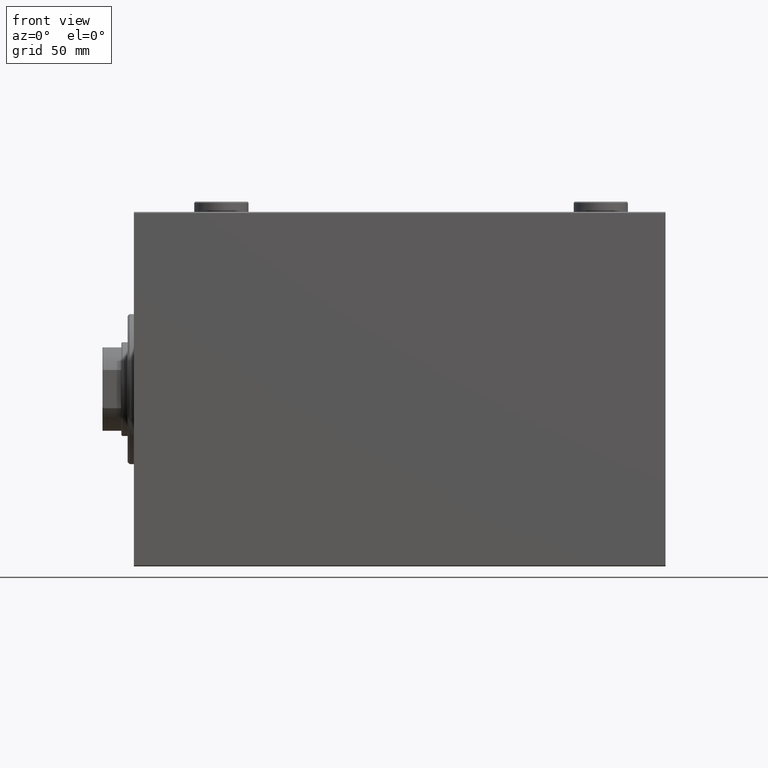
[diagram: clean part render]
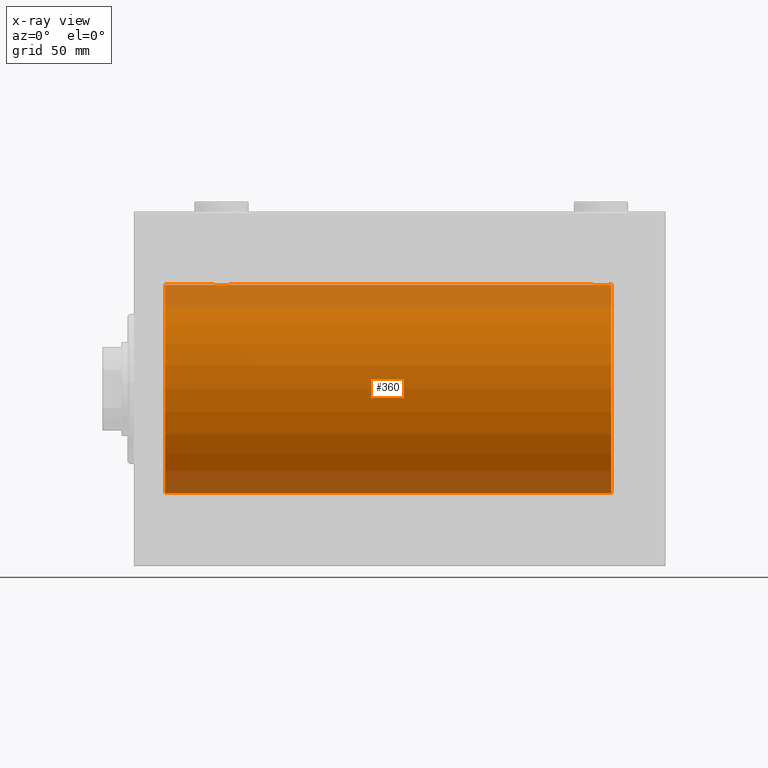
[diagram: x-ray — body ghosted, one internal face saturated and labeled with its STEP entity id]
A machine part, front view, then the same camera in x-ray: the body is ghosted and one INTERNAL B-rep face — a face not visible from any outside direction — is saturated and labeled: STEP entity #360.
In plain terms, the highlighted cylindrical surface (partial cylindrical patch) has radius 50 mm, axis along (-1, -0, -0).
Its self-contained STEP definition (entity closure, byte-faithful):
#24 = FACE_OUTER_BOUND ( 'NONE', #28652, .T. ) ;
#217 = CARTESIAN_POINT ( 'NONE',  ( 219.7500000000000284, -1.485882679034568268E-14, -50.00000000000000000 ) ) ;
#360 = ADVANCED_FACE ( 'NONE', ( #24 ), #45191, .F. ) ;
#494 = ORIENTED_EDGE ( 'NONE', *, *, #23923, .T. ) ;
#687 = DIRECTION ( 'NONE',  ( -1.000000000000000000, -0.000000000000000000, -0.000000000000000000 ) ) ;
#746 = CARTESIAN_POINT ( 'NONE',  ( 46.25000000000000000, 6.123233970928975205E-15, -50.00000000000000000 ) ) ;
#1143 = CARTESIAN_POINT ( 'NONE',  ( 220.7969643804801194, -2.807099414226295941, 49.92152599098506727 ) ) ;
#1299 = EDGE_CURVE ( 'NONE', #27711, #41059, #3142, .T. ) ;
#2279 = CARTESIAN_POINT ( 'NONE',  ( 226.8069783183931349, -3.203153387937324403, 49.89767833571684008 ) ) ;
#2282 = VERTEX_POINT ( 'NONE', #42905 ) ;
#2573 = LINE ( 'NONE', #30534, #35261 ) ;
#2906 = CARTESIAN_POINT ( 'NONE',  ( 43.09737617879036975, -4.115209769591108291, 49.83039196709102470 ) ) ;
#3060 = EDGE_CURVE ( 'NONE', #8789, #40538, #5086, .T. ) ;
#3142 = CIRCLE ( 'NONE', #42656, 50.00000000000000000 ) ;
#3230 = CARTESIAN_POINT ( 'NONE',  ( 228.2500000000000568, -0.2773743941468490570, -50.00000000000000711 ) ) ;
#3248 = EDGE_CURVE ( 'NONE', #25814, #27711, #16026, .T. ) ;
#3262 = CARTESIAN_POINT ( 'NONE',  ( 229.0000000000000000, 0.000000000000000000, 0.000000000000000000 ) ) ;
#3670 = CARTESIAN_POINT ( 'NONE',  ( 220.3139716787804332, -2.133925816755195992, -49.95498245321557818 ) ) ;
#3771 = VERTEX_POINT ( 'NONE', #17204 ) ;
#4125 = CARTESIAN_POINT ( 'NONE',  ( 223.4459143511985246, -4.222816005855223764, -49.82138837911247009 ) ) ;
#4147 = LINE ( 'NONE', #39888, #27475 ) ;
#4339 = CARTESIAN_POINT ( 'NONE',  ( 221.1930216816069219, -3.203153387937335506, -49.89767833571684008 ) ) ;
#4567 = CARTESIAN_POINT ( 'NONE',  ( 224.2839528702670293, -4.249777379711420444, -49.81906655360197789 ) ) ;
#4880 = CARTESIAN_POINT ( 'NONE',  ( 39.19302168160691480, -3.203153387937309748, -49.89767833571684008 ) ) ;
#5086 = LINE ( 'NONE', #8303, #41258 ) ;
#5103 = CARTESIAN_POINT ( 'NONE',  ( 39.87368355124922203, -3.690299572754709878, -49.86386974736159772 ) ) ;
#5266 = CARTESIAN_POINT ( 'NONE',  ( 220.6211828273627304, -2.593114840406140598, 49.93325460257641879 ) ) ;
#5337 = CARTESIAN_POINT ( 'NONE',  ( 40.63289352445425351, -4.033756670430834745, -49.83713703490974467 ) ) ;
#6177 = CARTESIAN_POINT ( 'NONE',  ( 221.4068727911404721, -3.378657745070624774, 49.88595615988430154 ) ) ;
#6350 = CARTESIAN_POINT ( 'NONE',  ( 45.81839248987871827, -1.886522330773408029, 49.96505190380065642 ) ) ;
#6408 = CARTESIAN_POINT ( 'NONE',  ( 224.5540856488015322, -4.222816005855213106, 49.82138837911247009 ) ) ;
#6666 = CARTESIAN_POINT ( 'NONE',  ( 228.2500000000000284, 6.123233970934497231E-15, -50.00000000000000000 ) ) ;
#6803 = CARTESIAN_POINT ( 'NONE',  ( 45.68602832121950286, -2.133925816755175564, 49.95498245321557818 ) ) ;
#6893 = CARTESIAN_POINT ( 'NONE',  ( 226.5931272088596415, -3.378657745070633656, -49.88595615988430154 ) ) ;
#6955 = VERTEX_POINT ( 'NONE', #27675 ) ;
#6981 = CARTESIAN_POINT ( 'NONE',  ( 45.82100581985226029, -1.881229021238117305, -49.96525240872482954 ) ) ;
#7122 = CARTESIAN_POINT ( 'NONE',  ( 225.8874473939280279, -3.818052230167738870, -49.85412671291929598 ) ) ;
#7739 = VERTEX_POINT ( 'NONE', #35903 ) ;
#8093 = CARTESIAN_POINT ( 'NONE',  ( 40.90262382120963025, -4.115209769591096745, -49.83039196709104601 ) ) ;
#8255 = CARTESIAN_POINT ( 'NONE',  ( 219.9672735790269087, -1.369753890039667299, 49.98188917176553048 ) ) ;
#8303 = CARTESIAN_POINT ( 'NONE',  ( 229.0000000000000000, 6.123233995736764507E-15, -50.00000000000000000 ) ) ;
#8317 = CARTESIAN_POINT ( 'NONE',  ( 38.80078072038718062, -2.811461347331096317, -49.92127983148851911 ) ) ;
#8341 = CARTESIAN_POINT ( 'NONE',  ( 14.99999999999998579, 0.000000000000000000, 0.000000000000000000 ) ) ;
#8776 = CARTESIAN_POINT ( 'NONE',  ( 43.37333436579038448, -4.031616700143170640, -49.83731072121799599 ) ) ;
#8789 = VERTEX_POINT ( 'NONE', #21722 ) ;
#9552 = CARTESIAN_POINT ( 'NONE',  ( 38.62118282736263097, -2.593114840406128163, 49.93325460257639747 ) ) ;
#9648 = CARTESIAN_POINT ( 'NONE',  ( 224.5599786769565469, -4.222042462213138947, -49.82145436824653473 ) ) ;
#9783 = CARTESIAN_POINT ( 'NONE',  ( 43.88217049484444487, -3.820681512513376177, 49.85392475515401145 ) ) ;
#9844 = CARTESIAN_POINT ( 'NONE',  ( 226.1263164487508277, -3.690299572754722313, 49.86386974736159061 ) ) ;
#9950 = CARTESIAN_POINT ( 'NONE',  ( 46.25000000000000000, 5.983909456282587589E-15, 50.00000000000000000 ) ) ;
#10011 = CARTESIAN_POINT ( 'NONE',  ( 44.12631644875079928, -3.690299572754719204, 49.86386974736159772 ) ) ;
#10457 = CARTESIAN_POINT ( 'NONE',  ( 37.75000000000000711, -2.480809774739037926E-23, 50.00000000000000000 ) ) ;
#10642 = CARTESIAN_POINT ( 'NONE',  ( 44.59312720885954917, -3.378657745070612339, -49.88595615988430154 ) ) ;
#10997 = CARTESIAN_POINT ( 'NONE',  ( 222.6328935244542890, -4.033756670430864943, -49.83713703490974467 ) ) ;
#11032 = CARTESIAN_POINT ( 'NONE',  ( 219.7500000000000284, -1.485882679034568268E-14, -50.00000000000000000 ) ) ;
#11227 = CARTESIAN_POINT ( 'NONE',  ( 222.1178295051556688, -3.820681512513397937, -49.85392475515401145 ) ) ;
#11272 = ORIENTED_EDGE ( 'NONE', *, *, #25973, .F. ) ;
#11681 = B_SPLINE_CURVE_WITH_KNOTS ( 'NONE', 3,
 ( #10457, #24212, #27435, #30642, #41417, #17120, #21017, #9552, #30421, #20335, #34086, #34536, #44611, #23531, #13452, #27204, #44389, #41185, #17349, #2906, #41861, #9783, #10011, #38198, #23760, #24438, #37754, #6803, #6350, #31319, #20790, #27658, #40958, #31095 ),
 .UNSPECIFIED., .F., .F.,
 ( 4, 2, 2, 2, 2, 2, 2, 2, 2, 2, 2, 2, 2, 2, 2, 2, 4 ),
 ( 0.01329343152928760124, 0.01412407817529638850, 0.01495472482130517575, 0.01578537146731396126, 0.01661601811332274678, 0.01744666475933153577, 0.01827731140534032128, 0.01910795805134911027, 0.01993860469735789925, 0.02076925134336668477, 0.02159989798937547029, 0.02243054463538425927, 0.02326119128139304479, 0.02409183792740183377, 0.02492248457341061929, 0.02575313121941940481, 0.02658377786542819379 ),
 .UNSPECIFIED. ) ;
#12224 = CARTESIAN_POINT ( 'NONE',  ( 42.28395287026697957, -4.249777379711388470, -49.81906655360197789 ) ) ;
#12444 = CARTESIAN_POINT ( 'NONE',  ( 37.75000000000000711, 4.113764933535406279E-15, -50.00000000000000000 ) ) ;
#12835 = CARTESIAN_POINT ( 'NONE',  ( 222.1125526060720290, -3.818052230167728656, 49.85412671291929598 ) ) ;
#13056 = CARTESIAN_POINT ( 'NONE',  ( 223.4400213230435668, -4.222042462213131842, 49.82145436824653473 ) ) ;
#13452 = CARTESIAN_POINT ( 'NONE',  ( 40.89676703965783844, -4.113647494206482236, 49.83052139214890985 ) ) ;
#13514 = CARTESIAN_POINT ( 'NONE',  ( 228.2500000000000568, -0.2808785465865648034, 50.00000000000001421 ) ) ;
#13775 = CARTESIAN_POINT ( 'NONE',  ( 227.2030356195199658, -2.807099414226281286, -49.92152599098506727 ) ) ;
#13784 = EDGE_CURVE ( 'NONE', #3771, #7739, #17843, .T. ) ;
#14083 = CARTESIAN_POINT ( 'NONE',  ( 45.37881717263737613, -2.593114840406121946, -49.93325460257640458 ) ) ;
#14447 = CARTESIAN_POINT ( 'NONE',  ( 221.8736835512492576, -3.690299572754732083, -49.86386974736159061 ) ) ;
#14975 = B_SPLINE_CURVE_WITH_KNOTS ( 'NONE', 3,
 ( #6666, #3230, #17215, #20208, #20886, #27968, #23625, #45161, #13775, #27746, #6893, #16541, #7122, #41050, #41727, #9648, #4567, #25429, #4125, #42399, #10997, #11227, #14447, #31635, #4339, #35074, #28413, #3670, #21326, #17654, #39407, #28193, #15124, #217 ),
 .UNSPECIFIED., .F., .F.,
 ( 4, 2, 2, 2, 2, 2, 2, 2, 2, 2, 2, 2, 2, 2, 2, 2, 4 ),
 ( 0.01329343152928758563, 0.01412407817529637115, 0.01495472482130515840, 0.01578537146731394392, 0.01661601811332272943, 0.01744666475933151495, 0.01827731140534030393, 0.01910795805134908945, 0.01993860469735787497, 0.02076925134336666395, 0.02159989798937544947, 0.02243054463538423499, 0.02326119128139302050, 0.02409183792740180602, 0.02492248457341059154, 0.02575313121941938052, 0.02658377786542816604 ),
 .UNSPECIFIED. ) ;
#15124 = CARTESIAN_POINT ( 'NONE',  ( 219.7500000000000853, -0.2808785465865831776, -50.00000000000001421 ) ) ;
#15156 = DIRECTION ( 'NONE',  ( -1.000000000000000000, 0.000000000000000000, 0.000000000000000000 ) ) ;
#15316 = EDGE_CURVE ( 'NONE', #6955, #7739, #30785, .T. ) ;
#15596 = CARTESIAN_POINT ( 'NONE',  ( 219.7500000000000284, -2.480257572105383217E-23, 50.00000000000000000 ) ) ;
#15893 = CARTESIAN_POINT ( 'NONE',  ( 40.11782950515556934, -3.820681512513369515, -49.85392475515401145 ) ) ;
#16026 = LINE ( 'NONE', #19685, #28059 ) ;
#16249 = DIRECTION ( 'NONE',  ( -1.000000000000000000, -0.000000000000000000, -0.000000000000000000 ) ) ;
#16278 = CARTESIAN_POINT ( 'NONE',  ( 227.8183924898787609, -1.886522330773414913, 49.96505190380066352 ) ) ;
#16541 = CARTESIAN_POINT ( 'NONE',  ( 226.1313639944616227, -3.687400765141540582, -49.86408552998298660 ) ) ;
#16954 = CARTESIAN_POINT ( 'NONE',  ( 225.3671064755457678, -4.033756670430855173, 49.83713703490974467 ) ) ;
#17098 = DIRECTION ( 'NONE',  ( -1.000000000000000000, -0.000000000000000000, -0.000000000000000000 ) ) ;
#17120 = CARTESIAN_POINT ( 'NONE',  ( 38.17899418014773261, -1.881229021238125521, 49.96525240872481533 ) ) ;
#17204 = CARTESIAN_POINT ( 'NONE',  ( 229.0000000000000000, 0.000000000000000000, 50.00000000000000000 ) ) ;
#17215 = CARTESIAN_POINT ( 'NONE',  ( 228.2231075279900381, -0.5531336717329015107, -49.99769193709643389 ) ) ;
#17349 = CARTESIAN_POINT ( 'NONE',  ( 42.55408564880149669, -4.222816005855208665, 49.82138837911247009 ) ) ;
#17654 = CARTESIAN_POINT ( 'NONE',  ( 219.9692020384465820, -1.375411031076054336, -49.98173289062309976 ) ) ;
#17843 = LINE ( 'NONE', #24713, #43735 ) ;
#18060 = CARTESIAN_POINT ( 'NONE',  ( 14.99999999999998579, 6.123233995736764507E-15, -50.00000000000000000 ) ) ;
#18272 = VERTEX_POINT ( 'NONE', #11032 ) ;
#18413 = CARTESIAN_POINT ( 'NONE',  ( 46.25000000000000000, -0.2773743941468470031, -50.00000000000000000 ) ) ;
#18866 = CARTESIAN_POINT ( 'NONE',  ( 41.44591435119853173, -4.222816005855193566, -49.82138837911247720 ) ) ;
#19253 = CARTESIAN_POINT ( 'NONE',  ( 221.1884693348459052, -3.199146701881689481, 49.89793607725460589 ) ) ;
#19552 = CARTESIAN_POINT ( 'NONE',  ( 38.31397167878050425, -2.133925816755180449, -49.95498245321556396 ) ) ;
#19685 = CARTESIAN_POINT ( 'NONE',  ( 229.0000000000000000, 6.123233995736764507E-15, -50.00000000000000000 ) ) ;
#19712 = CARTESIAN_POINT ( 'NONE',  ( 228.2224263552078014, -0.5587117664567154973, 49.99763378604802000 ) ) ;
#20022 = ORIENTED_EDGE ( 'NONE', *, *, #3060, .T. ) ;
#20158 = AXIS2_PLACEMENT_3D ( 'NONE', #39667, #15156, #32567 ) ;
#20172 = CARTESIAN_POINT ( 'NONE',  ( 222.6266656342096724, -4.031616700143195509, 49.83731072121799599 ) ) ;
#20208 = CARTESIAN_POINT ( 'NONE',  ( 228.1143191330600359, -1.101350136471741070, -49.98862054280448319 ) ) ;
#20335 = CARTESIAN_POINT ( 'NONE',  ( 39.18846933484580575, -3.199146701881673938, 49.89793607725460589 ) ) ;
#20790 = CARTESIAN_POINT ( 'NONE',  ( 46.11249701080335228, -1.108337267831485340, 49.98846998601261760 ) ) ;
#20886 = CARTESIAN_POINT ( 'NONE',  ( 228.0327264209731766, -1.369753890039647093, -49.98188917176553048 ) ) ;
#21017 = CARTESIAN_POINT ( 'NONE',  ( 38.31062844320613436, -2.128188802142365166, 49.95522967821974447 ) ) ;
#21326 = CARTESIAN_POINT ( 'NONE',  ( 220.1816075101212959, -1.886522330773430900, -49.96505190380066352 ) ) ;
#21722 = CARTESIAN_POINT ( 'NONE',  ( 229.0000000000000000, 6.123233995736764507E-15, -50.00000000000000000 ) ) ;
#21857 = CARTESIAN_POINT ( 'NONE',  ( 46.03272642097311973, -1.369753890039645539, -49.98188917176553048 ) ) ;
#22137 = VERTEX_POINT ( 'NONE', #9950 ) ;
#22237 = CARTESIAN_POINT ( 'NONE',  ( 219.7768924720100472, -0.5531336717329072838, 49.99769193709643389 ) ) ;
#22287 = DIRECTION ( 'NONE',  ( -1.000000000000000000, -0.000000000000000000, -0.000000000000000000 ) ) ;
#22306 = CARTESIAN_POINT ( 'NONE',  ( 43.88744739392799232, -3.818052230167705119, -49.85412671291930309 ) ) ;
#22329 = DIRECTION ( 'NONE',  ( -1.000000000000000000, 0.000000000000000000, 0.000000000000000000 ) ) ;
#23364 = CARTESIAN_POINT ( 'NONE',  ( 225.8821704948444733, -3.820681512513388167, 49.85392475515401145 ) ) ;
#23531 = CARTESIAN_POINT ( 'NONE',  ( 40.62666563420964394, -4.031616700143186627, 49.83731072121798888 ) ) ;
#23567 = CARTESIAN_POINT ( 'NONE',  ( 14.99999999999998579, 0.000000000000000000, 50.00000000000000000 ) ) ;
#23625 = CARTESIAN_POINT ( 'NONE',  ( 227.6893715567939580, -2.128188802142363389, -49.95522967821975158 ) ) ;
#23760 = CARTESIAN_POINT ( 'NONE',  ( 44.80697831839309941, -3.203153387937316854, 49.89767833571684719 ) ) ;
#23806 = CIRCLE ( 'NONE', #20158, 50.00000000000000000 ) ;
#23923 = EDGE_CURVE ( 'NONE', #40538, #18272, #14975, .T. ) ;
#24212 = CARTESIAN_POINT ( 'NONE',  ( 37.75000000000001421, -0.2773743941468539420, 50.00000000000000711 ) ) ;
#24438 = CARTESIAN_POINT ( 'NONE',  ( 45.19921927961282648, -2.811461347331102534, 49.92127983148852621 ) ) ;
#24619 = CARTESIAN_POINT ( 'NONE',  ( 44.13136399446155878, -3.687400765141517045, -49.86408552998298660 ) ) ;
#24713 = CARTESIAN_POINT ( 'NONE',  ( 229.0000000000000000, 0.000000000000000000, 50.00000000000000000 ) ) ;
#25291 = CARTESIAN_POINT ( 'NONE',  ( 46.22310752799000255, -0.5531336717328990682, -49.99769193709643389 ) ) ;
#25429 = CARTESIAN_POINT ( 'NONE',  ( 223.7227507296208842, -4.250219976861660420, -49.81902879621013369 ) ) ;
#25737 = CARTESIAN_POINT ( 'NONE',  ( 39.41179785323801354, -3.382416624899770685, -49.88570010427955737 ) ) ;
#25814 = VERTEX_POINT ( 'NONE', #26192 ) ;
#25832 = VERTEX_POINT ( 'NONE', #30075 ) ;
#25973 = EDGE_CURVE ( 'NONE', #6955, #22137, #2573, .T. ) ;
#26134 = CARTESIAN_POINT ( 'NONE',  ( 219.7500000000000284, -0.2773743941468554408, 50.00000000000000711 ) ) ;
#26192 = CARTESIAN_POINT ( 'NONE',  ( 37.75000000000000711, 4.113764933535406279E-15, -50.00000000000000000 ) ) ;
#27204 = CARTESIAN_POINT ( 'NONE',  ( 41.44002132304353125, -4.222042462213122960, 49.82145436824652762 ) ) ;
#27263 = CARTESIAN_POINT ( 'NONE',  ( 224.2772492703792011, -4.250219976861650650, 49.81902879621013369 ) ) ;
#27328 = DIRECTION ( 'NONE',  ( -1.000000000000000000, -0.000000000000000000, -0.000000000000000000 ) ) ;
#27435 = CARTESIAN_POINT ( 'NONE',  ( 37.77689247200999034, -0.5531336717329059516, 49.99769193709643389 ) ) ;
#27475 = VECTOR ( 'NONE', #687, 1000.000000000000000 ) ;
#27490 = ORIENTED_EDGE ( 'NONE', *, *, #3248, .T. ) ;
#27658 = CARTESIAN_POINT ( 'NONE',  ( 46.22242635520780851, -0.5587117664567096131, 49.99763378604802000 ) ) ;
#27675 = CARTESIAN_POINT ( 'NONE',  ( 219.7500000000000284, -2.480257572105383217E-23, 50.00000000000000000 ) ) ;
#27711 = VERTEX_POINT ( 'NONE', #18060 ) ;
#27746 = CARTESIAN_POINT ( 'NONE',  ( 226.8115306651542085, -3.199146701881677490, -49.89793607725460589 ) ) ;
#27838 = CARTESIAN_POINT ( 'NONE',  ( 228.2500000000000284, 6.123233970934497231E-15, -50.00000000000000000 ) ) ;
#27968 = CARTESIAN_POINT ( 'NONE',  ( 227.8210058198523598, -1.881229021238121524, -49.96525240872482954 ) ) ;
#28050 = CARTESIAN_POINT ( 'NONE',  ( 45.20303561951989479, -2.807099414226267076, -49.92152599098507437 ) ) ;
#28059 = VECTOR ( 'NONE', #16249, 1000.000000000000000 ) ;
#28193 = CARTESIAN_POINT ( 'NONE',  ( 219.7775736447922270, -0.5587117664567331499, -49.99763378604802000 ) ) ;
#28413 = CARTESIAN_POINT ( 'NONE',  ( 220.6248001591803813, -2.597781786597481712, -49.93300953359122474 ) ) ;
#28598 = ORIENTED_EDGE ( 'NONE', *, *, #13784, .F. ) ;
#28652 = EDGE_LOOP ( 'NONE', ( #37591, #20022, #494, #36134, #40933, #27490, #32254, #43216, #33149, #11272, #37486, #28598 ) ) ;
#29171 = CARTESIAN_POINT ( 'NONE',  ( 37.75000000000002132, -0.2808785465865586417, -50.00000000000002842 ) ) ;
#29857 = CARTESIAN_POINT ( 'NONE',  ( 37.88750298919665482, -1.108337267831484008, -49.98846998601261760 ) ) ;
#30075 = CARTESIAN_POINT ( 'NONE',  ( 46.25000000000000000, 6.123233970928975205E-15, -50.00000000000000000 ) ) ;
#30248 = CARTESIAN_POINT ( 'NONE',  ( 227.1992192796128336, -2.811461347331109639, 49.92127983148852621 ) ) ;
#30421 = CARTESIAN_POINT ( 'NONE',  ( 38.79696438048010521, -2.807099414226279066, 49.92152599098506016 ) ) ;
#30478 = CARTESIAN_POINT ( 'NONE',  ( 223.7160471297330560, -4.249777379711409786, 49.81906655360197789 ) ) ;
#30534 = CARTESIAN_POINT ( 'NONE',  ( 229.0000000000000000, 0.000000000000000000, 50.00000000000000000 ) ) ;
#30642 = CARTESIAN_POINT ( 'NONE',  ( 37.88568086693991432, -1.101350136471744623, 49.98862054280447609 ) ) ;
#30697 = CARTESIAN_POINT ( 'NONE',  ( 228.1124970108033949, -1.108337267831492889, 49.98846998601261760 ) ) ;
#30785 = B_SPLINE_CURVE_WITH_KNOTS ( 'NONE', 3,
 ( #15596, #26134, #22237, #42861, #8255, #40115, #36669, #5266, #1143, #19253, #6177, #41245, #12835, #20172, #44894, #13056, #30478, #27263, #6408, #34142, #16954, #23364, #9844, #44666, #2279, #30248, #43995, #38029, #16278, #30927, #30697, #19712, #13514, #37349 ),
 .UNSPECIFIED., .F., .F.,
 ( 4, 2, 2, 2, 2, 2, 2, 2, 2, 2, 2, 2, 2, 2, 2, 2, 4 ),
 ( 0.01329343152928759257, 0.01412407817529637809, 0.01495472482130516534, 0.01578537146731395086, 0.01661601811332273637, 0.01744666475933152189, 0.01827731140534030740, 0.01910795805134909292, 0.01993860469735788191, 0.02076925134336666742, 0.02159989798937545294, 0.02243054463538423846, 0.02326119128139302744, 0.02409183792740181296, 0.02492248457341059847, 0.02575313121941938399, 0.02658377786542816951 ),
 .UNSPECIFIED. ) ;
#30927 = CARTESIAN_POINT ( 'NONE',  ( 228.0307979615534748, -1.375411031076039237, 49.98173289062309976 ) ) ;
#30984 = DIRECTION ( 'NONE',  ( -1.000000000000000000, -0.000000000000000000, -0.000000000000000000 ) ) ;
#31095 = CARTESIAN_POINT ( 'NONE',  ( 46.25000000000000000, 5.983909456282587589E-15, 50.00000000000000000 ) ) ;
#31319 = CARTESIAN_POINT ( 'NONE',  ( 46.03079796155342507, -1.375411031076031687, 49.98173289062309976 ) ) ;
#31490 = CARTESIAN_POINT ( 'NONE',  ( 45.68937155679385853, -2.128188802142360281, -49.95522967821975868 ) ) ;
#31635 = CARTESIAN_POINT ( 'NONE',  ( 221.4117978532380278, -3.382416624899790669, -49.88570010427955737 ) ) ;
#31826 = EDGE_CURVE ( 'NONE', #18272, #25832, #34512, .T. ) ;
#32254 = ORIENTED_EDGE ( 'NONE', *, *, #1299, .T. ) ;
#32373 = VECTOR ( 'NONE', #17098, 1000.000000000000000 ) ;
#32567 = DIRECTION ( 'NONE',  ( 0.000000000000000000, 0.000000000000000000, 1.000000000000000000 ) ) ;
#32619 = CARTESIAN_POINT ( 'NONE',  ( 38.18160751012128173, -1.886522330773408251, -49.96505190380065642 ) ) ;
#33070 = CARTESIAN_POINT ( 'NONE',  ( 38.62480015918034582, -2.597781786597462617, -49.93300953359122474 ) ) ;
#33129 = AXIS2_PLACEMENT_3D ( 'NONE', #3262, #27328, #34884 ) ;
#33149 = ORIENTED_EDGE ( 'NONE', *, *, #44248, .T. ) ;
#33524 = CARTESIAN_POINT ( 'NONE',  ( 37.96920203844657493, -1.375411031076035240, -49.98173289062309976 ) ) ;
#34086 = CARTESIAN_POINT ( 'NONE',  ( 39.40687279114044372, -3.378657745070624774, 49.88595615988428733 ) ) ;
#34142 = CARTESIAN_POINT ( 'NONE',  ( 225.0973761787904550, -4.115209769591112732, 49.83039196709102470 ) ) ;
#34512 = LINE ( 'NONE', #45269, #32373 ) ;
#34536 = CARTESIAN_POINT ( 'NONE',  ( 39.86863600553846254, -3.687400765141531700, 49.86408552998297949 ) ) ;
#34884 = DIRECTION ( 'NONE',  ( 0.000000000000000000, 0.000000000000000000, 1.000000000000000000 ) ) ;
#35074 = CARTESIAN_POINT ( 'NONE',  ( 220.8007807203871948, -2.811461347331121186, -49.92127983148852621 ) ) ;
#35261 = VECTOR ( 'NONE', #30984, 1000.000000000000000 ) ;
#35903 = CARTESIAN_POINT ( 'NONE',  ( 228.2500000000000284, 3.264240518254796977E-15, 50.00000000000000000 ) ) ;
#36134 = ORIENTED_EDGE ( 'NONE', *, *, #31826, .T. ) ;
#36285 = CARTESIAN_POINT ( 'NONE',  ( 43.10323296034216156, -4.113647494206467137, -49.83052139214892406 ) ) ;
#36304 = DIRECTION ( 'NONE',  ( 0.000000000000000000, 0.000000000000000000, 1.000000000000000000 ) ) ;
#36508 = CARTESIAN_POINT ( 'NONE',  ( 41.72275072962083442, -4.250219976861629334, -49.81902879621016211 ) ) ;
#36669 = CARTESIAN_POINT ( 'NONE',  ( 220.3106284432061841, -2.128188802142376268, 49.95522967821975158 ) ) ;
#37349 = CARTESIAN_POINT ( 'NONE',  ( 228.2500000000000284, 3.264240518254796977E-15, 50.00000000000000000 ) ) ;
#37486 = ORIENTED_EDGE ( 'NONE', *, *, #15316, .T. ) ;
#37591 = ORIENTED_EDGE ( 'NONE', *, *, #38971, .F. ) ;
#37754 = CARTESIAN_POINT ( 'NONE',  ( 45.37519984081967550, -2.597781786597460840, 49.93300953359122474 ) ) ;
#38029 = CARTESIAN_POINT ( 'NONE',  ( 227.6860283212195668, -2.133925816755183558, 49.95498245321557818 ) ) ;
#38198 = CARTESIAN_POINT ( 'NONE',  ( 44.58820214676201488, -3.382416624899780011, 49.88570010427956447 ) ) ;
#38293 = B_SPLINE_CURVE_WITH_KNOTS ( 'NONE', 3,
 ( #746, #18413, #25291, #39272, #21857, #6981, #31490, #14083, #28050, #42039, #10642, #24619, #22306, #8776, #36285, #39719, #12224, #36508, #18866, #8093, #5337, #15893, #5103, #25737, #4880, #8317, #33070, #19552, #32619, #33524, #29857, #43833, #29171, #12444 ),
 .UNSPECIFIED., .F., .F.,
 ( 4, 2, 2, 2, 2, 2, 2, 2, 2, 2, 2, 2, 2, 2, 2, 2, 4 ),
 ( 0.01329343152928757175, 0.01412407817529635380, 0.01495472482130513585, 0.01578537146731391616, 0.01661601811332270168, 0.01744666475933148372, 0.01827731140534026577, 0.01910795805134904782, 0.01993860469735782986, 0.02076925134336661191, 0.02159989798937539396, 0.02243054463538417601, 0.02326119128139295805, 0.02409183792740174010, 0.02492248457341052215, 0.02575313121941930072, 0.02658377786542808624 ),
 .UNSPECIFIED. ) ;
#38623 = EDGE_CURVE ( 'NONE', #25832, #25814, #38293, .T. ) ;
#38695 = DIRECTION ( 'NONE',  ( -1.000000000000000000, -0.000000000000000000, -0.000000000000000000 ) ) ;
#38971 = EDGE_CURVE ( 'NONE', #8789, #3771, #23806, .T. ) ;
#39272 = CARTESIAN_POINT ( 'NONE',  ( 46.11431913306007857, -1.101350136471737073, -49.98862054280448319 ) ) ;
#39407 = CARTESIAN_POINT ( 'NONE',  ( 219.8875029891967188, -1.108337267831510209, -49.98846998601261760 ) ) ;
#39667 = CARTESIAN_POINT ( 'NONE',  ( 229.0000000000000000, 0.000000000000000000, 0.000000000000000000 ) ) ;
#39719 = CARTESIAN_POINT ( 'NONE',  ( 42.55997867695646875, -4.222042462213109637, -49.82145436824654183 ) ) ;
#39888 = CARTESIAN_POINT ( 'NONE',  ( 229.0000000000000000, 0.000000000000000000, 50.00000000000000000 ) ) ;
#40115 = CARTESIAN_POINT ( 'NONE',  ( 220.1789941801477539, -1.881229021238139731, 49.96525240872482954 ) ) ;
#40538 = VERTEX_POINT ( 'NONE', #27838 ) ;
#40933 = ORIENTED_EDGE ( 'NONE', *, *, #38623, .T. ) ;
#40958 = CARTESIAN_POINT ( 'NONE',  ( 46.25000000000004263, -0.2808785465865667463, 50.00000000000001421 ) ) ;
#41050 = CARTESIAN_POINT ( 'NONE',  ( 225.3733343657904129, -4.031616700143205279, -49.83731072121799599 ) ) ;
#41059 = VERTEX_POINT ( 'NONE', #23567 ) ;
#41185 = CARTESIAN_POINT ( 'NONE',  ( 42.27724927037917979, -4.250219976861642657, 49.81902879621012659 ) ) ;
#41245 = CARTESIAN_POINT ( 'NONE',  ( 221.8686360055384910, -3.687400765141532144, 49.86408552998298660 ) ) ;
#41258 = VECTOR ( 'NONE', #22287, 1000.000000000000000 ) ;
#41417 = CARTESIAN_POINT ( 'NONE',  ( 37.96727357902688027, -1.369753890039652644, 49.98188917176551627 ) ) ;
#41727 = CARTESIAN_POINT ( 'NONE',  ( 225.1032329603422397, -4.113647494206493782, -49.83052139214891696 ) ) ;
#41861 = CARTESIAN_POINT ( 'NONE',  ( 43.36710647554576070, -4.033756670430846292, 49.83713703490974467 ) ) ;
#42039 = CARTESIAN_POINT ( 'NONE',  ( 44.81153066515420136, -3.199146701881660171, -49.89793607725461300 ) ) ;
#42399 = CARTESIAN_POINT ( 'NONE',  ( 222.9026238212096587, -4.115209769591121614, -49.83039196709102470 ) ) ;
#42656 = AXIS2_PLACEMENT_3D ( 'NONE', #8341, #22329, #36304 ) ;
#42861 = CARTESIAN_POINT ( 'NONE',  ( 219.8856808669399356, -1.101350136471746399, 49.98862054280448319 ) ) ;
#42905 = CARTESIAN_POINT ( 'NONE',  ( 37.75000000000000711, -2.480809774739037926E-23, 50.00000000000000000 ) ) ;
#43216 = ORIENTED_EDGE ( 'NONE', *, *, #43694, .F. ) ;
#43694 = EDGE_CURVE ( 'NONE', #2282, #41059, #4147, .T. ) ;
#43735 = VECTOR ( 'NONE', #38695, 1000.000000000000000 ) ;
#43833 = CARTESIAN_POINT ( 'NONE',  ( 37.77757364479219149, -0.5587117664567089470, -49.99763378604803421 ) ) ;
#43995 = CARTESIAN_POINT ( 'NONE',  ( 227.3751998408197039, -2.597781786597468390, 49.93300953359122474 ) ) ;
#44248 = EDGE_CURVE ( 'NONE', #2282, #22137, #11681, .T. ) ;
#44389 = CARTESIAN_POINT ( 'NONE',  ( 41.71604712973303464, -4.249777379711404457, 49.81906655360197078 ) ) ;
#44611 = CARTESIAN_POINT ( 'NONE',  ( 40.11255260607201478, -3.818052230167719330, 49.85412671291930309 ) ) ;
#44666 = CARTESIAN_POINT ( 'NONE',  ( 226.5882021467620291, -3.382416624899780899, 49.88570010427955737 ) ) ;
#44894 = CARTESIAN_POINT ( 'NONE',  ( 222.8967670396579024, -4.113647494206492006, 49.83052139214891696 ) ) ;
#45161 = CARTESIAN_POINT ( 'NONE',  ( 227.3788171726373264, -2.593114840406127719, -49.93325460257641879 ) ) ;
#45191 = CYLINDRICAL_SURFACE ( 'NONE', #33129, 50.00000000000000000 ) ;
#45269 = CARTESIAN_POINT ( 'NONE',  ( 229.0000000000000000, 6.123233995736764507E-15, -50.00000000000000000 ) ) ;